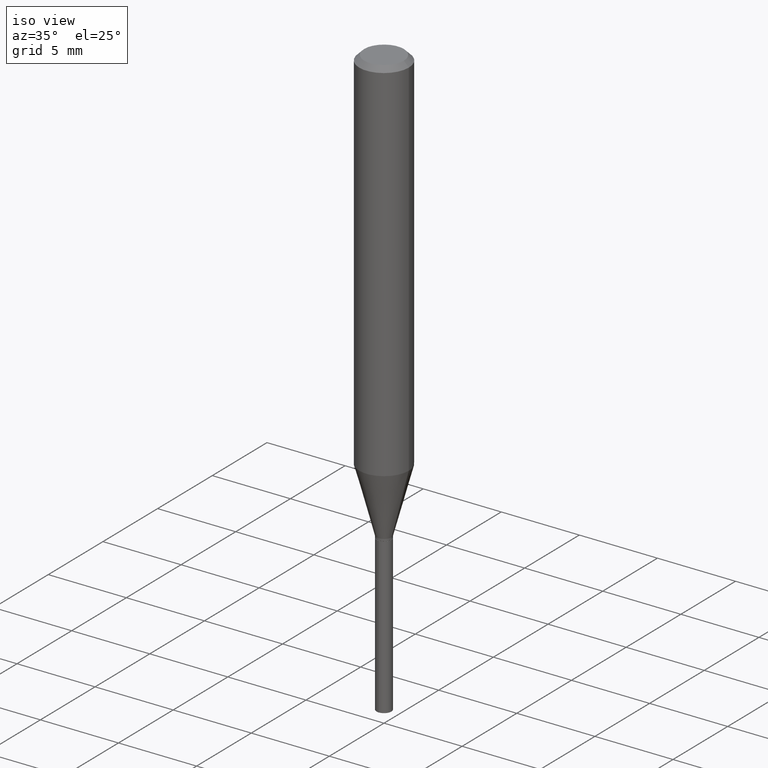
[diagram: clean part render]
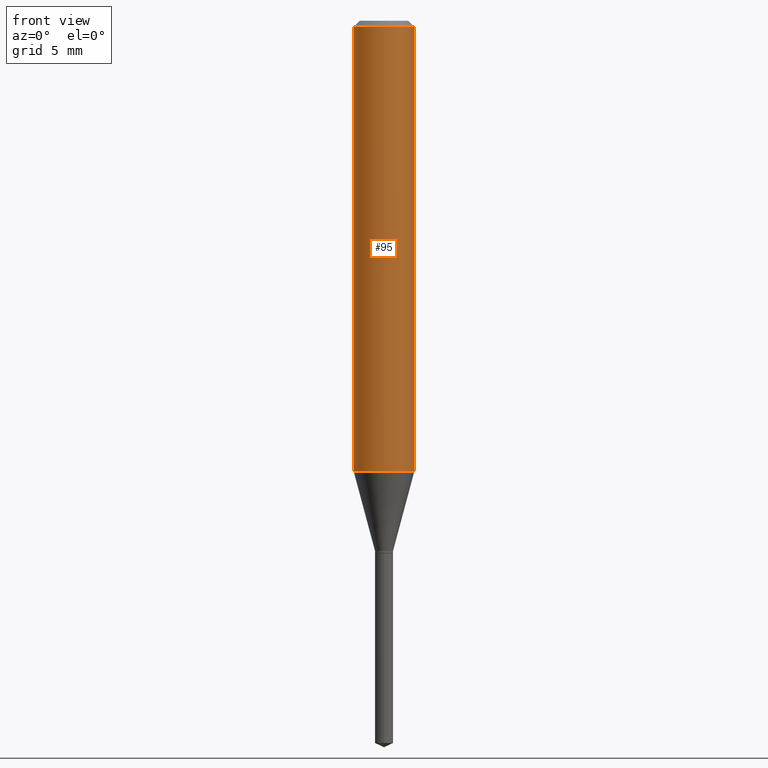
[diagram: tour spotlight — one face highlighted and labeled with its STEP entity id]
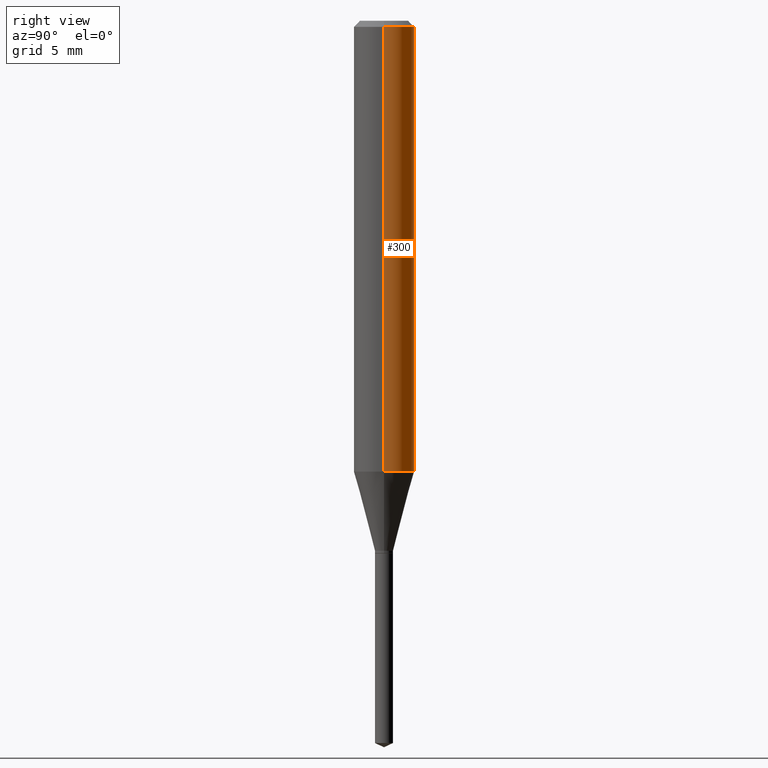
[diagram: tour spotlight — one face highlighted and labeled with its STEP entity id]
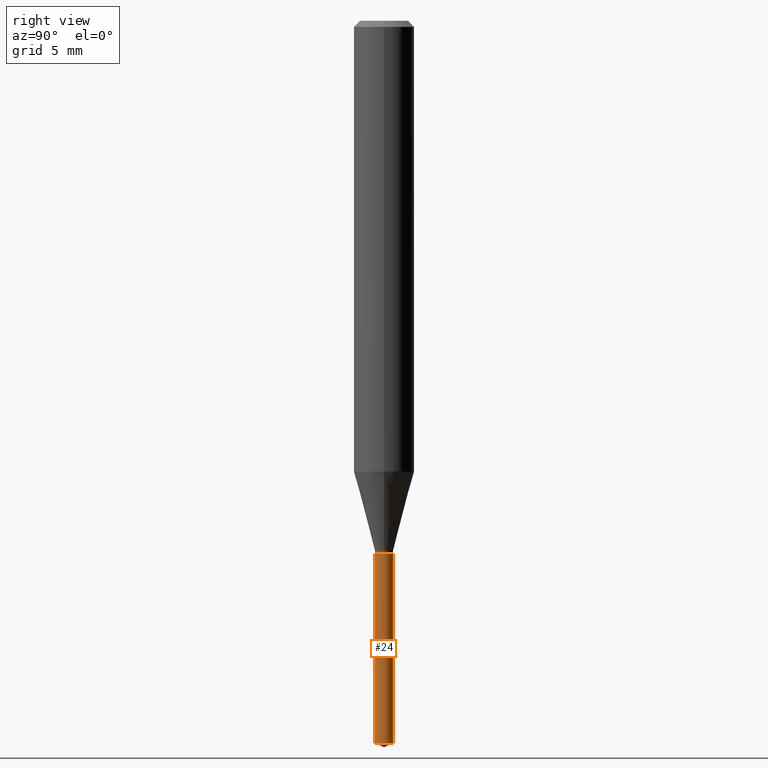
[diagram: tour spotlight — one face highlighted and labeled with its STEP entity id]
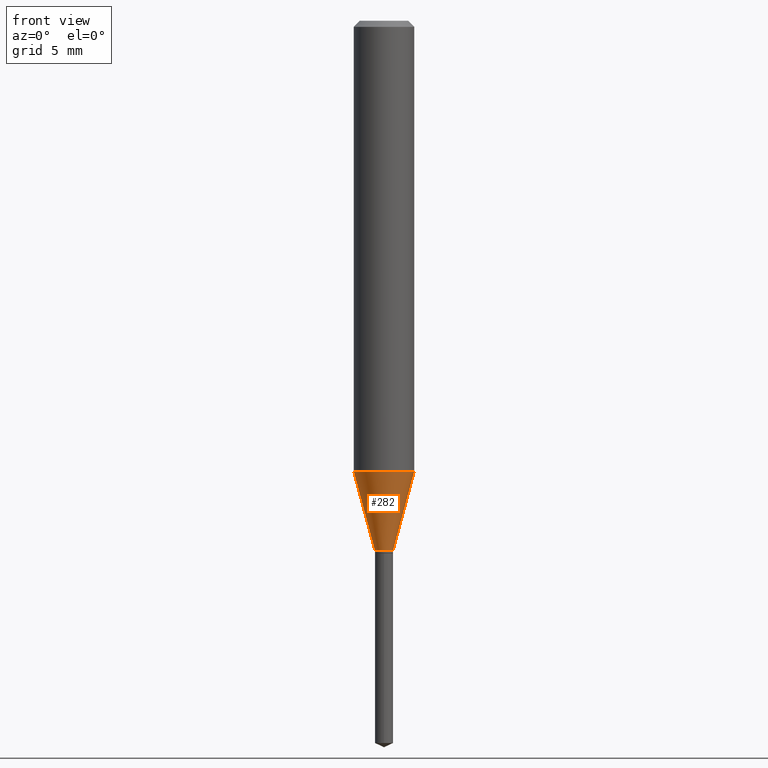
[diagram: tour spotlight — one face highlighted and labeled with its STEP entity id]
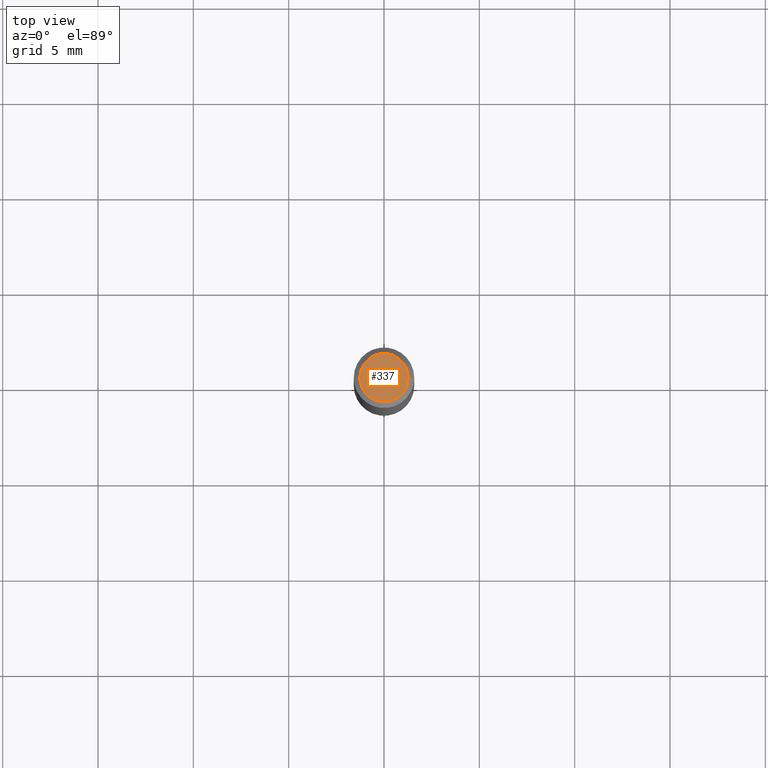
[diagram: tour spotlight — one face highlighted and labeled with its STEP entity id]
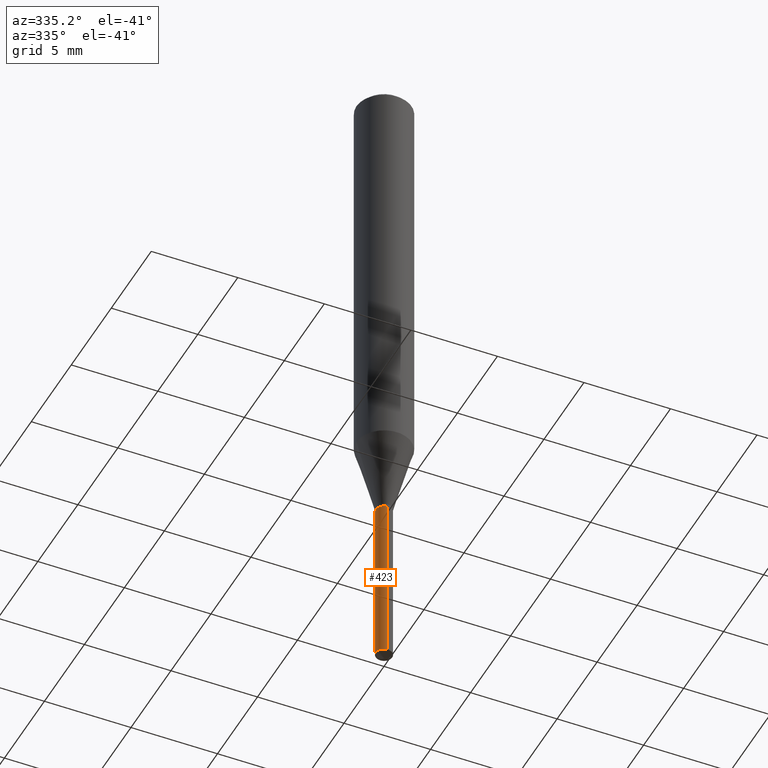
[diagram: tour spotlight — one face highlighted and labeled with its STEP entity id]
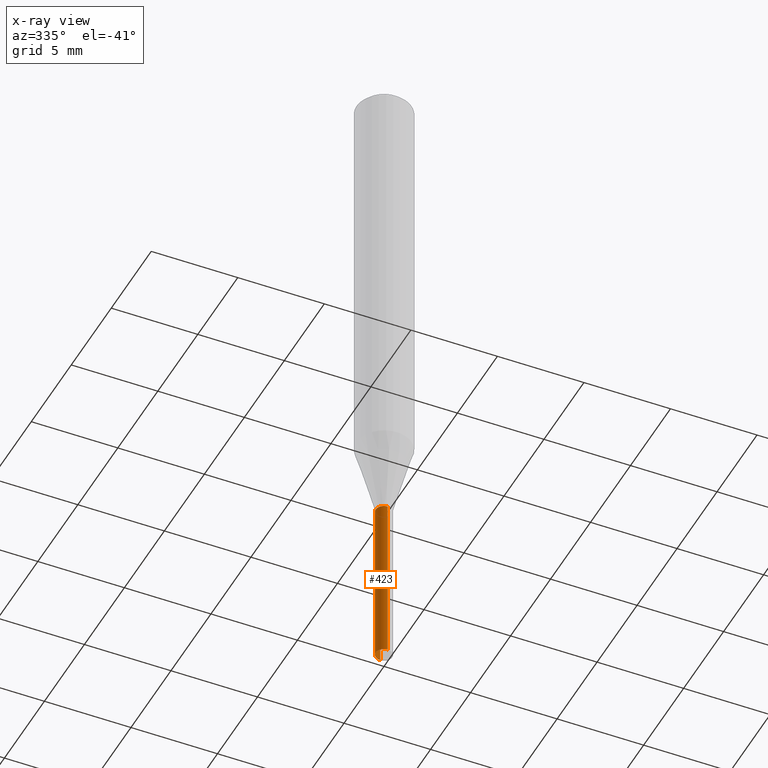
[diagram: x-ray of the same camera — body ghosted, this tour face saturated]
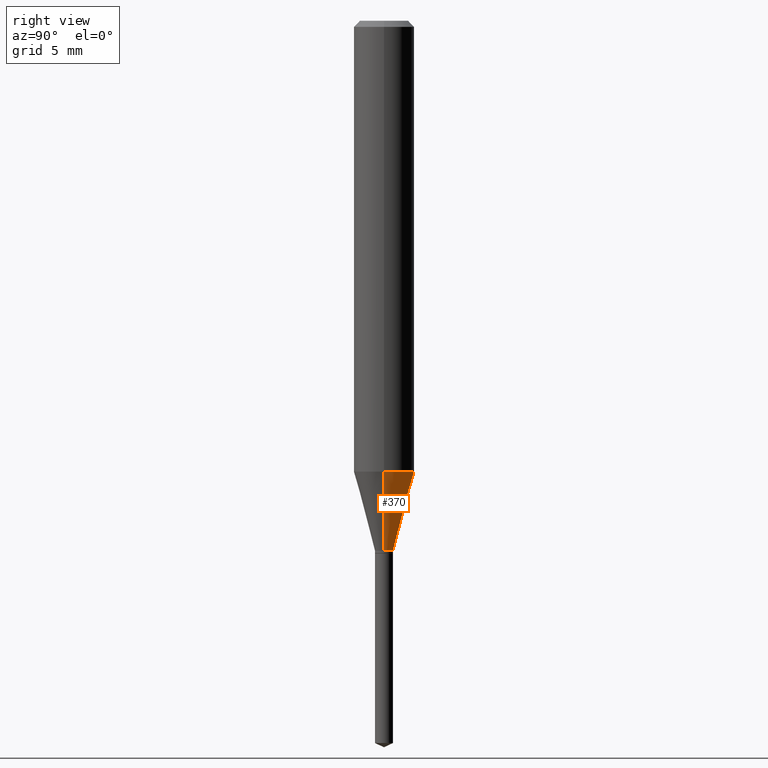
[diagram: tour spotlight — one face highlighted and labeled with its STEP entity id]
A machine part: a face-by-face anatomy tour. The part has 17 B-rep faces; the first image is the clean iso view, then the 7 largest visible faces are spotlighted one at a time (largest first), each with its STEP entity span.

Face 1 — front view, entity #95. In plain terms, the highlighted cylindrical surface (edge-blend (fillet) strip) has radius 1.5875 mm, axis along (-0, 0, 1).
Definition (entity closure, byte-faithful):
#7 = DIRECTION ( 'NONE',  ( 1.000000000000000000, -6.982962677686266711E-15, 4.876176775795935232E-29 ) ) ;
#8 = ORIENTED_EDGE ( 'NONE', *, *, #171, .T. ) ;
#12 = DIRECTION ( 'NONE',  ( -2.445468806185136597E-29, 3.491481338843145583E-15, 1.000000000000000000 ) ) ;
#14 = CYLINDRICAL_SURFACE ( 'NONE', #417, 0.06250000000000005551 ) ;
#42 = CIRCLE ( 'NONE', #222, 0.06250000000000009714 ) ;
#73 = ORIENTED_EDGE ( 'NONE', *, *, #215, .T. ) ;
#95 = ADVANCED_FACE ( 'NONE', ( #126 ), #14, .T. ) ;
#126 = FACE_OUTER_BOUND ( 'NONE', #463, .T. ) ;
#141 = CIRCLE ( 'NONE', #427, 0.06250000000000000000 ) ;
#171 = EDGE_CURVE ( 'NONE', #373, #361, #387, .T. ) ;
#187 = DIRECTION ( 'NONE',  ( 1.000000000000000000, -6.982962677686266711E-15, 0.000000000000000000 ) ) ;
#199 = VECTOR ( 'NONE', #447, 39.37007874015748143 ) ;
#205 = CARTESIAN_POINT ( 'NONE',  ( 0.06250000000000005551, -4.364351673553920638E-16, 3.047610484872462323E-30 ) ) ;
#206 = ORIENTED_EDGE ( 'NONE', *, *, #255, .F. ) ;
#215 = EDGE_CURVE ( 'NONE', #371, #373, #42, .T. ) ;
#222 = AXIS2_PLACEMENT_3D ( 'NONE', #383, #12, #238 ) ;
#238 = DIRECTION ( 'NONE',  ( 1.000000000000000000, -6.982962677686267499E-15, 0.000000000000000000 ) ) ;
#255 = EDGE_CURVE ( 'NONE', #338, #361, #141, .T. ) ;
#274 = DIRECTION ( 'NONE',  ( -2.445468806185136877E-29, 3.491481338843145188E-15, 1.000000000000000000 ) ) ;
#277 = VECTOR ( 'NONE', #274, 39.37007874015748143 ) ;
#294 = LINE ( 'NONE', #334, #199 ) ;
#330 = CARTESIAN_POINT ( 'NONE',  ( 0.06250000000000009714, -3.686781448724765386E-15, -0.9309361746284832151 ) ) ;
#334 = CARTESIAN_POINT ( 'NONE',  ( -0.06250000000000005551, 4.440892098500630106E-16, -3.074334431409318916E-30 ) ) ;
#338 = VERTEX_POINT ( 'NONE', #434 ) ;
#344 = DIRECTION ( 'NONE',  ( -2.445468806185136597E-29, 3.491481338843145583E-15, 1.000000000000000000 ) ) ;
#361 = VERTEX_POINT ( 'NONE', #403 ) ;
#364 = CARTESIAN_POINT ( 'NONE',  ( -0.06250000000000009714, -2.806257071519309917E-15, -0.9309361746284832151 ) ) ;
#371 = VERTEX_POINT ( 'NONE', #364 ) ;
#373 = VERTEX_POINT ( 'NONE', #330 ) ;
#383 = CARTESIAN_POINT ( 'NONE',  ( 2.276575375603274557E-29, -3.250346281369372533E-15, -0.9309361746284832151 ) ) ;
#387 = LINE ( 'NONE', #205, #277 ) ;
#403 = CARTESIAN_POINT ( 'NONE',  ( 0.06250000000000000000, -4.800786840909312308E-16, -0.01250000000000008049 ) ) ;
#417 = AXIS2_PLACEMENT_3D ( 'NONE', #426, #344, #7 ) ;
#424 = ORIENTED_EDGE ( 'NONE', *, *, #443, .F. ) ;
#426 = CARTESIAN_POINT ( 'NONE',  ( 0.000000000000000000, 0.000000000000000000, 0.000000000000000000 ) ) ;
#427 = AXIS2_PLACEMENT_3D ( 'NONE', #468, #430, #187 ) ;
#430 = DIRECTION ( 'NONE',  ( -2.445468806185136597E-29, 3.491481338843145583E-15, 1.000000000000000000 ) ) ;
#434 = CARTESIAN_POINT ( 'NONE',  ( -0.06250000000000000000, -1.202905689202392840E-15, -0.01250000000000008049 ) ) ;
#443 = EDGE_CURVE ( 'NONE', #371, #338, #294, .T. ) ;
#447 = DIRECTION ( 'NONE',  ( -2.445468806185136877E-29, 3.491481338843145188E-15, 1.000000000000000000 ) ) ;
#463 = EDGE_LOOP ( 'NONE', ( #424, #73, #8, #206 ) ) ;
#468 = CARTESIAN_POINT ( 'NONE',  ( 3.056836007731440539E-31, -4.364351673553960451E-17, -0.01250000000000008049 ) ) ;

Face 2 — right view, entity #300. In plain terms, the highlighted cylindrical surface (edge-blend (fillet) strip) has radius 1.5875 mm, axis along (-0, 0, 1).
Definition (entity closure, byte-faithful):
#18 = AXIS2_PLACEMENT_3D ( 'NONE', #470, #192, #48 ) ;
#25 = CARTESIAN_POINT ( 'NONE',  ( 0.000000000000000000, 0.000000000000000000, 0.000000000000000000 ) ) ;
#34 = AXIS2_PLACEMENT_3D ( 'NONE', #25, #207, #360 ) ;
#40 = EDGE_CURVE ( 'NONE', #373, #371, #67, .T. ) ;
#48 = DIRECTION ( 'NONE',  ( 1.000000000000000000, -6.982962677686266711E-15, 0.000000000000000000 ) ) ;
#65 = ORIENTED_EDGE ( 'NONE', *, *, #443, .T. ) ;
#67 = CIRCLE ( 'NONE', #404, 0.06250000000000009714 ) ;
#78 = ORIENTED_EDGE ( 'NONE', *, *, #146, .F. ) ;
#113 = DIRECTION ( 'NONE',  ( -2.445468806185136597E-29, 3.491481338843145583E-15, 1.000000000000000000 ) ) ;
#127 = FACE_OUTER_BOUND ( 'NONE', #485, .T. ) ;
#132 = CYLINDRICAL_SURFACE ( 'NONE', #34, 0.06250000000000005551 ) ;
#146 = EDGE_CURVE ( 'NONE', #361, #338, #460, .T. ) ;
#171 = EDGE_CURVE ( 'NONE', #373, #361, #387, .T. ) ;
#192 = DIRECTION ( 'NONE',  ( -2.445468806185136597E-29, 3.491481338843145583E-15, 1.000000000000000000 ) ) ;
#199 = VECTOR ( 'NONE', #447, 39.37007874015748143 ) ;
#205 = CARTESIAN_POINT ( 'NONE',  ( 0.06250000000000005551, -4.364351673553920638E-16, 3.047610484872462323E-30 ) ) ;
#207 = DIRECTION ( 'NONE',  ( -2.445468806185136597E-29, 3.491481338843145583E-15, 1.000000000000000000 ) ) ;
#227 = CARTESIAN_POINT ( 'NONE',  ( 2.276575375603274557E-29, -3.250346281369372533E-15, -0.9309361746284832151 ) ) ;
#274 = DIRECTION ( 'NONE',  ( -2.445468806185136877E-29, 3.491481338843145188E-15, 1.000000000000000000 ) ) ;
#277 = VECTOR ( 'NONE', #274, 39.37007874015748143 ) ;
#294 = LINE ( 'NONE', #334, #199 ) ;
#300 = ADVANCED_FACE ( 'NONE', ( #127 ), #132, .T. ) ;
#330 = CARTESIAN_POINT ( 'NONE',  ( 0.06250000000000009714, -3.686781448724765386E-15, -0.9309361746284832151 ) ) ;
#334 = CARTESIAN_POINT ( 'NONE',  ( -0.06250000000000005551, 4.440892098500630106E-16, -3.074334431409318916E-30 ) ) ;
#338 = VERTEX_POINT ( 'NONE', #434 ) ;
#360 = DIRECTION ( 'NONE',  ( 1.000000000000000000, -6.982962677686266711E-15, 4.876176775795935232E-29 ) ) ;
#361 = VERTEX_POINT ( 'NONE', #403 ) ;
#364 = CARTESIAN_POINT ( 'NONE',  ( -0.06250000000000009714, -2.806257071519309917E-15, -0.9309361746284832151 ) ) ;
#371 = VERTEX_POINT ( 'NONE', #364 ) ;
#373 = VERTEX_POINT ( 'NONE', #330 ) ;
#387 = LINE ( 'NONE', #205, #277 ) ;
#403 = CARTESIAN_POINT ( 'NONE',  ( 0.06250000000000000000, -4.800786840909312308E-16, -0.01250000000000008049 ) ) ;
#404 = AXIS2_PLACEMENT_3D ( 'NONE', #227, #113, #410 ) ;
#410 = DIRECTION ( 'NONE',  ( 1.000000000000000000, -6.982962677686267499E-15, 0.000000000000000000 ) ) ;
#412 = ORIENTED_EDGE ( 'NONE', *, *, #40, .T. ) ;
#429 = ORIENTED_EDGE ( 'NONE', *, *, #171, .F. ) ;
#434 = CARTESIAN_POINT ( 'NONE',  ( -0.06250000000000000000, -1.202905689202392840E-15, -0.01250000000000008049 ) ) ;
#443 = EDGE_CURVE ( 'NONE', #371, #338, #294, .T. ) ;
#447 = DIRECTION ( 'NONE',  ( -2.445468806185136877E-29, 3.491481338843145188E-15, 1.000000000000000000 ) ) ;
#460 = CIRCLE ( 'NONE', #18, 0.06250000000000000000 ) ;
#470 = CARTESIAN_POINT ( 'NONE',  ( 3.056836007731440539E-31, -4.364351673553960451E-17, -0.01250000000000008049 ) ) ;
#485 = EDGE_LOOP ( 'NONE', ( #412, #65, #78, #429 ) ) ;

Face 3 — right view, entity #24. In plain terms, the highlighted cylindrical surface (edge-blend (fillet) strip) has radius 0.475 mm, axis along (-0, 0, 1).
Definition (entity closure, byte-faithful):
#3 = EDGE_CURVE ( 'NONE', #159, #268, #135, .T. ) ;
#5 = CARTESIAN_POINT ( 'NONE',  ( 1.328714915871656395E-16, 0.01869999999999616067, -1.100000000000000089 ) ) ;
#24 = ADVANCED_FACE ( 'NONE', ( #26 ), #444, .T. ) ;
#26 = FACE_OUTER_BOUND ( 'NONE', #259, .T. ) ;
#29 = DIRECTION ( 'NONE',  ( -6.982962677686265922E-15, -1.000000000000000000, 0.000000000000000000 ) ) ;
#38 = ORIENTED_EDGE ( 'NONE', *, *, #157, .F. ) ;
#75 = CIRCLE ( 'NONE', #271, 0.01870000000000000134 ) ;
#104 = LINE ( 'NONE', #280, #389 ) ;
#111 = DIRECTION ( 'NONE',  ( -6.982962677686265922E-15, -1.000000000000000000, 0.000000000000000000 ) ) ;
#135 = CIRCLE ( 'NONE', #290, 0.01870000000000000134 ) ;
#143 = ORIENTED_EDGE ( 'NONE', *, *, #174, .T. ) ;
#157 = EDGE_CURVE ( 'NONE', #342, #395, #75, .T. ) ;
#159 = VERTEX_POINT ( 'NONE', #308 ) ;
#173 = CARTESIAN_POINT ( 'NONE',  ( 2.690015686803650369E-29, -3.840629472727460101E-15, -1.100000000000000089 ) ) ;
#174 = EDGE_CURVE ( 'NONE', #268, #395, #346, .T. ) ;
#198 = AXIS2_PLACEMENT_3D ( 'NONE', #173, #482, #111 ) ;
#209 = CARTESIAN_POINT ( 'NONE',  ( 1.328714915871752538E-16, 0.01869999999999615720, -1.100000000000000089 ) ) ;
#235 = DIRECTION ( 'NONE',  ( -2.445399690415121530E-29, 3.491580316559632610E-15, 1.000000000000000000 ) ) ;
#246 = ORIENTED_EDGE ( 'NONE', *, *, #351, .F. ) ;
#259 = EDGE_LOOP ( 'NONE', ( #303, #143, #38, #246 ) ) ;
#268 = VERTEX_POINT ( 'NONE', #396 ) ;
#271 = AXIS2_PLACEMENT_3D ( 'NONE', #393, #235, #419 ) ;
#280 = CARTESIAN_POINT ( 'NONE',  ( -1.305814020727062802E-16, -0.01870000000000384202, -1.100000000000000089 ) ) ;
#286 = DIRECTION ( 'NONE',  ( -2.445399690415121810E-29, 3.491580316559632610E-15, 1.000000000000000000 ) ) ;
#290 = AXIS2_PLACEMENT_3D ( 'NONE', #442, #439, #29 ) ;
#303 = ORIENTED_EDGE ( 'NONE', *, *, #3, .T. ) ;
#306 = DIRECTION ( 'NONE',  ( -2.445399690415121810E-29, 3.491580316559632610E-15, 1.000000000000000000 ) ) ;
#308 = CARTESIAN_POINT ( 'NONE',  ( -1.305814020726966906E-16, -0.01870000000000520898, -1.491280046792502034 ) ) ;
#319 = VECTOR ( 'NONE', #306, 39.37007874015748143 ) ;
#342 = VERTEX_POINT ( 'NONE', #437 ) ;
#346 = LINE ( 'NONE', #5, #319 ) ;
#351 = EDGE_CURVE ( 'NONE', #159, #342, #104, .T. ) ;
#389 = VECTOR ( 'NONE', #286, 39.37007874015748143 ) ;
#393 = CARTESIAN_POINT ( 'NONE',  ( 2.690015686803650369E-29, -3.840629472727460101E-15, -1.100000000000000089 ) ) ;
#395 = VERTEX_POINT ( 'NONE', #209 ) ;
#396 = CARTESIAN_POINT ( 'NONE',  ( 1.328714915871752045E-16, 0.01869999999999479370, -1.491280046792502034 ) ) ;
#419 = DIRECTION ( 'NONE',  ( -6.982962677686265922E-15, -1.000000000000000000, 0.000000000000000000 ) ) ;
#437 = CARTESIAN_POINT ( 'NONE',  ( -1.305814020727062802E-16, -0.01870000000000384202, -1.100000000000000089 ) ) ;
#439 = DIRECTION ( 'NONE',  ( -2.445399690415121530E-29, 3.491580316559632610E-15, 1.000000000000000000 ) ) ;
#442 = CARTESIAN_POINT ( 'NONE',  ( 3.646851792095648765E-29, -5.206815182370692435E-15, -1.491280046792502034 ) ) ;
#444 = CYLINDRICAL_SURFACE ( 'NONE', #198, 0.01870000000000000134 ) ;
#482 = DIRECTION ( 'NONE',  ( -2.445399690415121530E-29, 3.491580316559632610E-15, 1.000000000000000000 ) ) ;

Face 4 — front view, entity #282. In plain terms, the highlighted conical surface has half-angle 15 deg.
Definition (entity closure, byte-faithful):
#2 = CARTESIAN_POINT ( 'NONE',  ( 0.01870000000000000134, -3.951658579302672462E-15, -1.094400000000000039 ) ) ;
#12 = DIRECTION ( 'NONE',  ( -2.445468806185136597E-29, 3.491481338843145583E-15, 1.000000000000000000 ) ) ;
#42 = CIRCLE ( 'NONE', #222, 0.06250000000000009714 ) ;
#53 = AXIS2_PLACEMENT_3D ( 'NONE', #100, #322, #167 ) ;
#59 = CARTESIAN_POINT ( 'NONE',  ( 2.676321061489013570E-29, -3.821077177229939261E-15, -1.094400000000000039 ) ) ;
#70 = EDGE_LOOP ( 'NONE', ( #239, #486, #117, #390 ) ) ;
#81 = CARTESIAN_POINT ( 'NONE',  ( 0.01870000000000000134, -3.951658579302672462E-15, -1.094400000000000039 ) ) ;
#86 = VERTEX_POINT ( 'NONE', #81 ) ;
#89 = CARTESIAN_POINT ( 'NONE',  ( -0.01870000000000000134, -3.688205685642800172E-15, -1.094400000000000039 ) ) ;
#93 = LINE ( 'NONE', #89, #208 ) ;
#100 = CARTESIAN_POINT ( 'NONE',  ( 2.676321061489013570E-29, -3.821077177229939261E-15, -1.094400000000000039 ) ) ;
#117 = ORIENTED_EDGE ( 'NONE', *, *, #415, .T. ) ;
#134 = DIRECTION ( 'NONE',  ( 0.2588190451025211281, 1.565188264969622954E-15, 0.9659258262890679791 ) ) ;
#164 = LINE ( 'NONE', #2, #320 ) ;
#167 = DIRECTION ( 'NONE',  ( 1.000000000000000000, -6.982962677686274599E-15, 0.000000000000000000 ) ) ;
#169 = EDGE_CURVE ( 'NONE', #336, #371, #93, .T. ) ;
#178 = AXIS2_PLACEMENT_3D ( 'NONE', #59, #214, #324 ) ;
#208 = VECTOR ( 'NONE', #461, 39.37007874015748854 ) ;
#214 = DIRECTION ( 'NONE',  ( -2.445468806185136597E-29, 3.491481338843145583E-15, 1.000000000000000000 ) ) ;
#215 = EDGE_CURVE ( 'NONE', #371, #373, #42, .T. ) ;
#222 = AXIS2_PLACEMENT_3D ( 'NONE', #383, #12, #238 ) ;
#238 = DIRECTION ( 'NONE',  ( 1.000000000000000000, -6.982962677686267499E-15, 0.000000000000000000 ) ) ;
#239 = ORIENTED_EDGE ( 'NONE', *, *, #169, .F. ) ;
#282 = ADVANCED_FACE ( 'NONE', ( #479 ), #333, .T. ) ;
#320 = VECTOR ( 'NONE', #134, 39.37007874015748854 ) ;
#322 = DIRECTION ( 'NONE',  ( -2.445468806185136597E-29, 3.491481338843145583E-15, 1.000000000000000000 ) ) ;
#324 = DIRECTION ( 'NONE',  ( 1.000000000000000000, -6.982962677686274599E-15, 0.000000000000000000 ) ) ;
#330 = CARTESIAN_POINT ( 'NONE',  ( 0.06250000000000009714, -3.686781448724765386E-15, -0.9309361746284832151 ) ) ;
#333 = CONICAL_SURFACE ( 'NONE', #178, 0.01870000000000000134, 0.2617993877991498519 ) ;
#336 = VERTEX_POINT ( 'NONE', #481 ) ;
#345 = EDGE_CURVE ( 'NONE', #336, #86, #428, .T. ) ;
#364 = CARTESIAN_POINT ( 'NONE',  ( -0.06250000000000009714, -2.806257071519309917E-15, -0.9309361746284832151 ) ) ;
#371 = VERTEX_POINT ( 'NONE', #364 ) ;
#373 = VERTEX_POINT ( 'NONE', #330 ) ;
#383 = CARTESIAN_POINT ( 'NONE',  ( 2.276575375603274557E-29, -3.250346281369372533E-15, -0.9309361746284832151 ) ) ;
#390 = ORIENTED_EDGE ( 'NONE', *, *, #215, .F. ) ;
#415 = EDGE_CURVE ( 'NONE', #86, #373, #164, .T. ) ;
#428 = CIRCLE ( 'NONE', #53, 0.01870000000000000134 ) ;
#461 = DIRECTION ( 'NONE',  ( -0.2588190451025211281, 5.211531920934547886E-15, 0.9659258262890679791 ) ) ;
#479 = FACE_OUTER_BOUND ( 'NONE', #70, .T. ) ;
#481 = CARTESIAN_POINT ( 'NONE',  ( -0.01870000000000000134, -3.697108963056850235E-15, -1.094400000000000039 ) ) ;
#486 = ORIENTED_EDGE ( 'NONE', *, *, #345, .T. ) ;

Face 5 — top view, entity #337. In plain terms, the highlighted planar face has unit normal (0, -0, -1).
Definition (entity closure, byte-faithful):
#21 = ORIENTED_EDGE ( 'NONE', *, *, #94, .T. ) ;
#22 = DIRECTION ( 'NONE',  ( 2.438088387897960049E-29, -3.491481338843145188E-15, -1.000000000000000000 ) ) ;
#50 = DIRECTION ( 'NONE',  ( -2.445468806185136597E-29, 3.491481338843145583E-15, 1.000000000000000000 ) ) ;
#63 = DIRECTION ( 'NONE',  ( 1.000000000000000000, -6.982962677686265922E-15, 4.875957971899673662E-29 ) ) ;
#64 = CARTESIAN_POINT ( 'NONE',  ( 0.04999999999999999584, -4.077247707424184212E-16, -1.592040838888913461E-18 ) ) ;
#91 = CIRCLE ( 'NONE', #328, 0.04999999999999999584 ) ;
#94 = EDGE_CURVE ( 'NONE', #281, #384, #114, .T. ) ;
#114 = CIRCLE ( 'NONE', #150, 0.04999999999999999584 ) ;
#120 = CARTESIAN_POINT ( 'NONE',  ( 3.893286209682126177E-47, -5.558580879666067980E-33, -1.592040838891559689E-18 ) ) ;
#125 = FACE_OUTER_BOUND ( 'NONE', #489, .T. ) ;
#144 = DIRECTION ( 'NONE',  ( 1.000000000000000000, -6.982962677686265922E-15, 4.875957971899673662E-29 ) ) ;
#150 = AXIS2_PLACEMENT_3D ( 'NONE', #386, #50, #63 ) ;
#163 = PLANE ( 'NONE',  #278 ) ;
#165 = EDGE_CURVE ( 'NONE', #384, #281, #91, .T. ) ;
#196 = ORIENTED_EDGE ( 'NONE', *, *, #165, .T. ) ;
#278 = AXIS2_PLACEMENT_3D ( 'NONE', #440, #22, #289 ) ;
#281 = VERTEX_POINT ( 'NONE', #475 ) ;
#289 = DIRECTION ( 'NONE',  ( -1.000000000000000000, 6.982962677686265922E-15, -4.876176775795935793E-29 ) ) ;
#312 = DIRECTION ( 'NONE',  ( -2.445468806185136597E-29, 3.491481338843145583E-15, 1.000000000000000000 ) ) ;
#328 = AXIS2_PLACEMENT_3D ( 'NONE', #120, #312, #144 ) ;
#337 = ADVANCED_FACE ( 'NONE', ( #125 ), #163, .F. ) ;
#384 = VERTEX_POINT ( 'NONE', #64 ) ;
#386 = CARTESIAN_POINT ( 'NONE',  ( 3.893286209682126177E-47, -5.558580879666067980E-33, -1.592040838891559689E-18 ) ) ;
#440 = CARTESIAN_POINT ( 'NONE',  ( 1.946643104841063088E-47, -2.779290439833033990E-33, -7.960204194457798443E-19 ) ) ;
#475 = CARTESIAN_POINT ( 'NONE',  ( -0.04999999999999999584, 3.709698922520826725E-16, -1.592040838894077649E-18 ) ) ;
#489 = EDGE_LOOP ( 'NONE', ( #21, #196 ) ) ;

Face 6 — auxiliary view, entity #423. An x-ray twin of the same camera follows (body ghosted, this face saturated) — the face is partly hidden behind the body. In plain terms, the highlighted cylindrical surface (edge-blend (fillet) strip) has radius 0.475 mm, axis along (-0, 0, 1).
Definition (entity closure, byte-faithful):
#5 = CARTESIAN_POINT ( 'NONE',  ( 1.328714915871656395E-16, 0.01869999999999616067, -1.100000000000000089 ) ) ;
#30 = FACE_OUTER_BOUND ( 'NONE', #110, .T. ) ;
#69 = DIRECTION ( 'NONE',  ( -6.982962677686265922E-15, -1.000000000000000000, 0.000000000000000000 ) ) ;
#104 = LINE ( 'NONE', #280, #389 ) ;
#110 = EDGE_LOOP ( 'NONE', ( #197, #454, #172, #181 ) ) ;
#116 = DIRECTION ( 'NONE',  ( -6.982962677686265922E-15, -1.000000000000000000, 0.000000000000000000 ) ) ;
#123 = DIRECTION ( 'NONE',  ( -2.445399690415121530E-29, 3.491580316559632610E-15, 1.000000000000000000 ) ) ;
#138 = DIRECTION ( 'NONE',  ( -2.445399690415121530E-29, 3.491580316559632610E-15, 1.000000000000000000 ) ) ;
#158 = CARTESIAN_POINT ( 'NONE',  ( 3.646851792095648765E-29, -5.206815182370692435E-15, -1.491280046792502034 ) ) ;
#159 = VERTEX_POINT ( 'NONE', #308 ) ;
#162 = AXIS2_PLACEMENT_3D ( 'NONE', #258, #138, #69 ) ;
#168 = AXIS2_PLACEMENT_3D ( 'NONE', #413, #339, #291 ) ;
#172 = ORIENTED_EDGE ( 'NONE', *, *, #351, .T. ) ;
#174 = EDGE_CURVE ( 'NONE', #268, #395, #346, .T. ) ;
#181 = ORIENTED_EDGE ( 'NONE', *, *, #465, .F. ) ;
#188 = EDGE_CURVE ( 'NONE', #268, #159, #484, .T. ) ;
#197 = ORIENTED_EDGE ( 'NONE', *, *, #174, .F. ) ;
#209 = CARTESIAN_POINT ( 'NONE',  ( 1.328714915871752538E-16, 0.01869999999999615720, -1.100000000000000089 ) ) ;
#258 = CARTESIAN_POINT ( 'NONE',  ( 2.690015686803650369E-29, -3.840629472727460101E-15, -1.100000000000000089 ) ) ;
#268 = VERTEX_POINT ( 'NONE', #396 ) ;
#280 = CARTESIAN_POINT ( 'NONE',  ( -1.305814020727062802E-16, -0.01870000000000384202, -1.100000000000000089 ) ) ;
#286 = DIRECTION ( 'NONE',  ( -2.445399690415121810E-29, 3.491580316559632610E-15, 1.000000000000000000 ) ) ;
#291 = DIRECTION ( 'NONE',  ( -6.982962677686265922E-15, -1.000000000000000000, 0.000000000000000000 ) ) ;
#306 = DIRECTION ( 'NONE',  ( -2.445399690415121810E-29, 3.491580316559632610E-15, 1.000000000000000000 ) ) ;
#308 = CARTESIAN_POINT ( 'NONE',  ( -1.305814020726966906E-16, -0.01870000000000520898, -1.491280046792502034 ) ) ;
#319 = VECTOR ( 'NONE', #306, 39.37007874015748143 ) ;
#339 = DIRECTION ( 'NONE',  ( -2.445399690415121530E-29, 3.491580316559632610E-15, 1.000000000000000000 ) ) ;
#342 = VERTEX_POINT ( 'NONE', #437 ) ;
#346 = LINE ( 'NONE', #5, #319 ) ;
#347 = AXIS2_PLACEMENT_3D ( 'NONE', #158, #123, #116 ) ;
#351 = EDGE_CURVE ( 'NONE', #159, #342, #104, .T. ) ;
#379 = CIRCLE ( 'NONE', #162, 0.01870000000000000134 ) ;
#389 = VECTOR ( 'NONE', #286, 39.37007874015748143 ) ;
#395 = VERTEX_POINT ( 'NONE', #209 ) ;
#396 = CARTESIAN_POINT ( 'NONE',  ( 1.328714915871752045E-16, 0.01869999999999479370, -1.491280046792502034 ) ) ;
#407 = CYLINDRICAL_SURFACE ( 'NONE', #168, 0.01870000000000000134 ) ;
#413 = CARTESIAN_POINT ( 'NONE',  ( 2.690015686803650369E-29, -3.840629472727460101E-15, -1.100000000000000089 ) ) ;
#423 = ADVANCED_FACE ( 'NONE', ( #30 ), #407, .T. ) ;
#437 = CARTESIAN_POINT ( 'NONE',  ( -1.305814020727062802E-16, -0.01870000000000384202, -1.100000000000000089 ) ) ;
#454 = ORIENTED_EDGE ( 'NONE', *, *, #188, .T. ) ;
#465 = EDGE_CURVE ( 'NONE', #395, #342, #379, .T. ) ;
#484 = CIRCLE ( 'NONE', #347, 0.01870000000000000134 ) ;

Face 7 — right view, entity #370. In plain terms, the highlighted conical surface has half-angle 15 deg.
Definition (entity closure, byte-faithful):
#2 = CARTESIAN_POINT ( 'NONE',  ( 0.01870000000000000134, -3.951658579302672462E-15, -1.094400000000000039 ) ) ;
#40 = EDGE_CURVE ( 'NONE', #373, #371, #67, .T. ) ;
#66 = CARTESIAN_POINT ( 'NONE',  ( 2.676321061489013570E-29, -3.821077177229939261E-15, -1.094400000000000039 ) ) ;
#67 = CIRCLE ( 'NONE', #404, 0.06250000000000009714 ) ;
#77 = AXIS2_PLACEMENT_3D ( 'NONE', #66, #401, #216 ) ;
#81 = CARTESIAN_POINT ( 'NONE',  ( 0.01870000000000000134, -3.951658579302672462E-15, -1.094400000000000039 ) ) ;
#86 = VERTEX_POINT ( 'NONE', #81 ) ;
#89 = CARTESIAN_POINT ( 'NONE',  ( -0.01870000000000000134, -3.688205685642800172E-15, -1.094400000000000039 ) ) ;
#93 = LINE ( 'NONE', #89, #208 ) ;
#113 = DIRECTION ( 'NONE',  ( -2.445468806185136597E-29, 3.491481338843145583E-15, 1.000000000000000000 ) ) ;
#130 = CONICAL_SURFACE ( 'NONE', #77, 0.01870000000000000134, 0.2617993877991498519 ) ;
#134 = DIRECTION ( 'NONE',  ( 0.2588190451025211281, 1.565188264969622954E-15, 0.9659258262890679791 ) ) ;
#155 = ORIENTED_EDGE ( 'NONE', *, *, #415, .F. ) ;
#161 = ORIENTED_EDGE ( 'NONE', *, *, #441, .T. ) ;
#164 = LINE ( 'NONE', #2, #320 ) ;
#169 = EDGE_CURVE ( 'NONE', #336, #371, #93, .T. ) ;
#208 = VECTOR ( 'NONE', #461, 39.37007874015748854 ) ;
#216 = DIRECTION ( 'NONE',  ( 1.000000000000000000, -6.982962677686274599E-15, 0.000000000000000000 ) ) ;
#218 = CARTESIAN_POINT ( 'NONE',  ( 2.676321061489013570E-29, -3.821077177229939261E-15, -1.094400000000000039 ) ) ;
#227 = CARTESIAN_POINT ( 'NONE',  ( 2.276575375603274557E-29, -3.250346281369372533E-15, -0.9309361746284832151 ) ) ;
#252 = FACE_OUTER_BOUND ( 'NONE', #295, .T. ) ;
#254 = ORIENTED_EDGE ( 'NONE', *, *, #40, .F. ) ;
#295 = EDGE_LOOP ( 'NONE', ( #161, #327, #254, #155 ) ) ;
#309 = AXIS2_PLACEMENT_3D ( 'NONE', #218, #448, #372 ) ;
#320 = VECTOR ( 'NONE', #134, 39.37007874015748854 ) ;
#327 = ORIENTED_EDGE ( 'NONE', *, *, #169, .T. ) ;
#330 = CARTESIAN_POINT ( 'NONE',  ( 0.06250000000000009714, -3.686781448724765386E-15, -0.9309361746284832151 ) ) ;
#336 = VERTEX_POINT ( 'NONE', #481 ) ;
#364 = CARTESIAN_POINT ( 'NONE',  ( -0.06250000000000009714, -2.806257071519309917E-15, -0.9309361746284832151 ) ) ;
#370 = ADVANCED_FACE ( 'NONE', ( #252 ), #130, .T. ) ;
#371 = VERTEX_POINT ( 'NONE', #364 ) ;
#372 = DIRECTION ( 'NONE',  ( 1.000000000000000000, -6.982962677686274599E-15, 0.000000000000000000 ) ) ;
#373 = VERTEX_POINT ( 'NONE', #330 ) ;
#401 = DIRECTION ( 'NONE',  ( -2.445468806185136597E-29, 3.491481338843145583E-15, 1.000000000000000000 ) ) ;
#404 = AXIS2_PLACEMENT_3D ( 'NONE', #227, #113, #410 ) ;
#410 = DIRECTION ( 'NONE',  ( 1.000000000000000000, -6.982962677686267499E-15, 0.000000000000000000 ) ) ;
#415 = EDGE_CURVE ( 'NONE', #86, #373, #164, .T. ) ;
#441 = EDGE_CURVE ( 'NONE', #86, #336, #452, .T. ) ;
#448 = DIRECTION ( 'NONE',  ( -2.445468806185136597E-29, 3.491481338843145583E-15, 1.000000000000000000 ) ) ;
#452 = CIRCLE ( 'NONE', #309, 0.01870000000000000134 ) ;
#461 = DIRECTION ( 'NONE',  ( -0.2588190451025211281, 5.211531920934547886E-15, 0.9659258262890679791 ) ) ;
#481 = CARTESIAN_POINT ( 'NONE',  ( -0.01870000000000000134, -3.697108963056850235E-15, -1.094400000000000039 ) ) ;